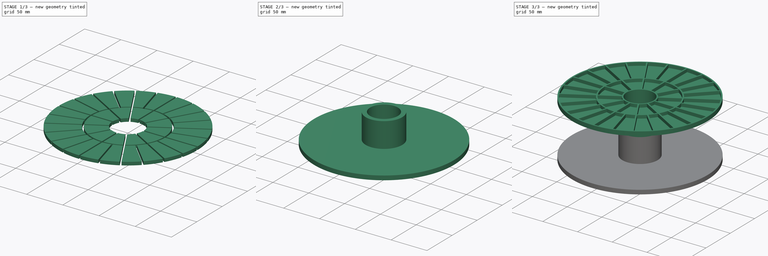
[diagram: build sequence overview — one tinted view per stage of 3, left to right]
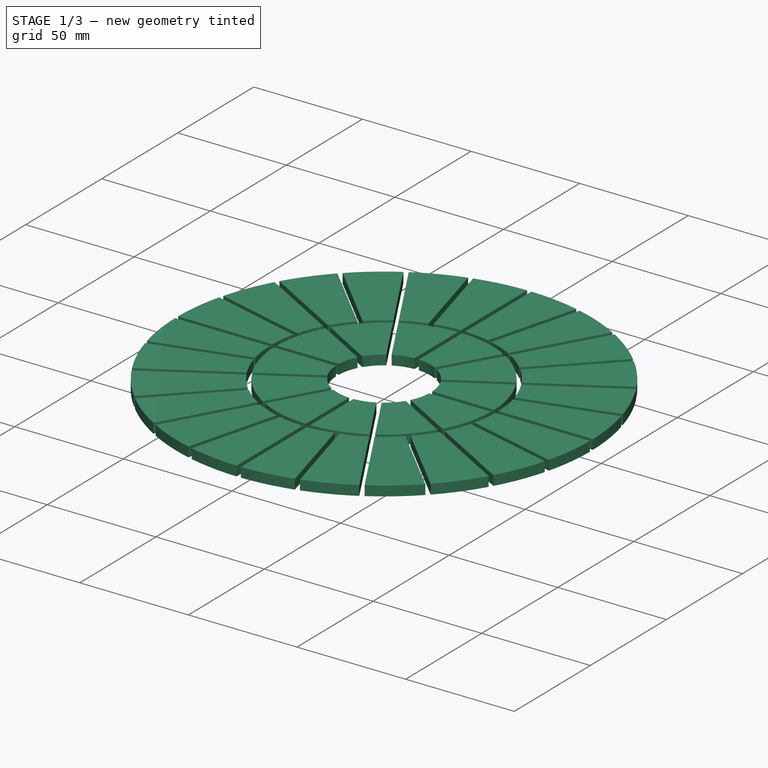
[diagram: stage 1 of 3 — iso view after this stage's code; geometry added in this stage tinted green]
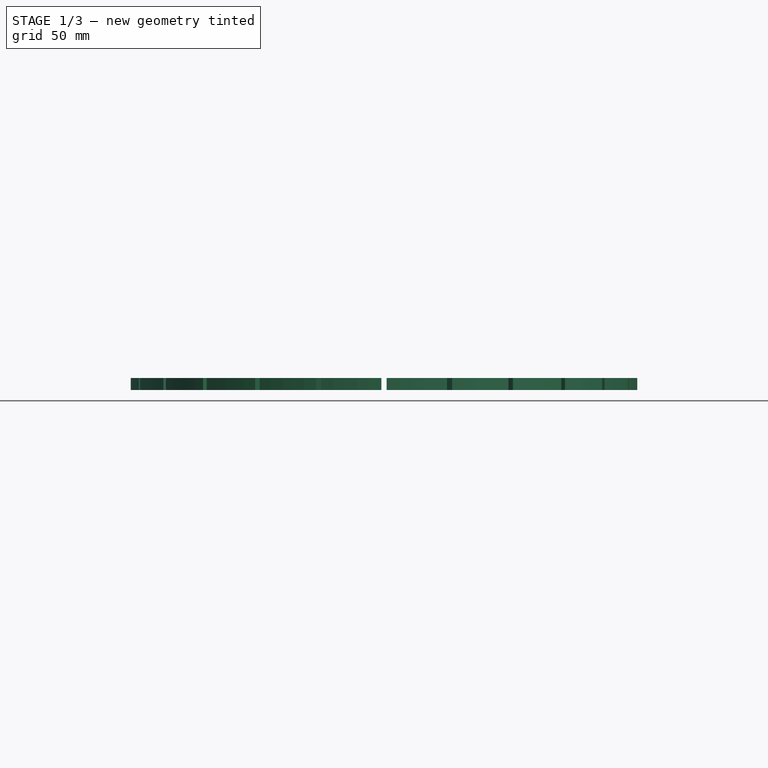
[diagram: stage 1 of 3 — front view after this stage's code; geometry added in this stage tinted green]
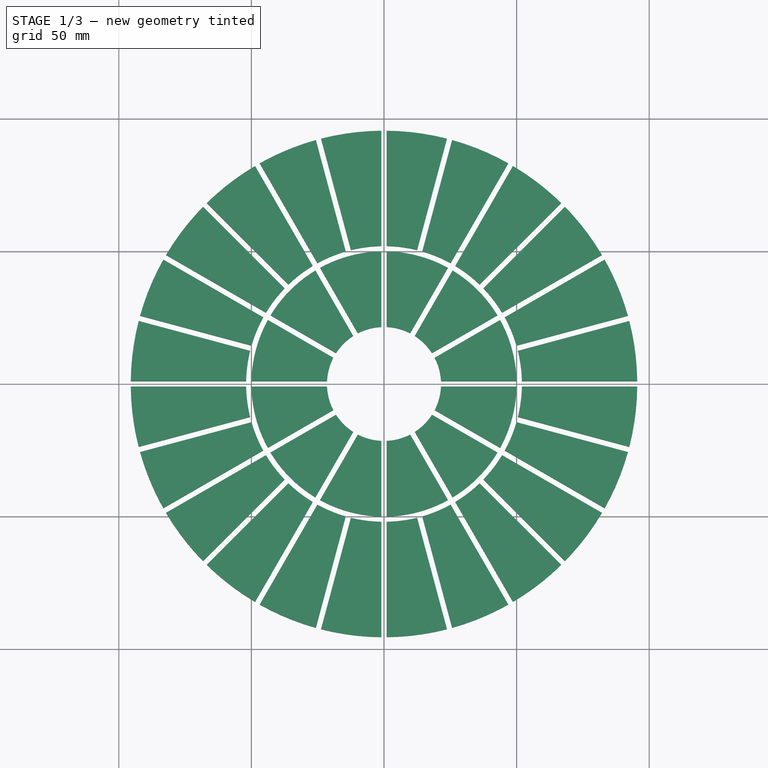
[diagram: stage 1 of 3 — top view after this stage's code; geometry added in this stage tinted green]
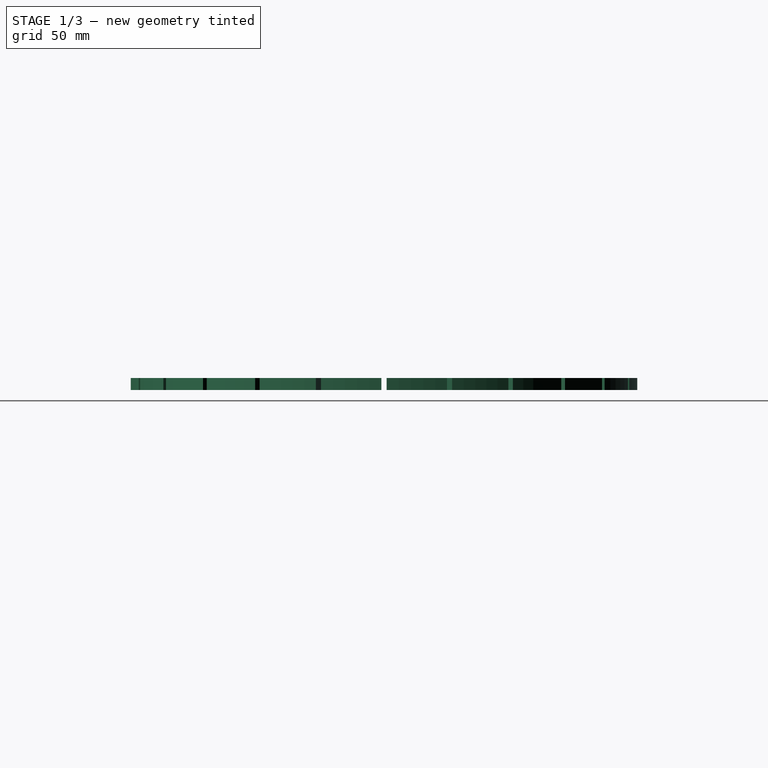
[diagram: stage 1 of 3 — right view after this stage's code; geometry added in this stage tinted green]
FCSTD DOCUMENT  (FreeCAD 0.14R3310 (Git))
Label: 44.SPOOL FORMFUTURA (ROLLO FILAMENTO)
License: CC-BY 3.0
LicenseURL: http://creativecommons.org/licenses/by/3.0/
objects: Sketcher::SketchObject×3, PartDesign::Pad×3, Part::FeaturePython×1, Part::Cut×1, Part::Mirroring×1, Part::MultiFuse×1
note: 13 computed .brp shape members not serialized (recipe doc carries the construction recipe); baked Part::Feature solids carry a one-line shape summary decoded from their .brp

FEATURE [Sketcher::SketchObject] Sketch002
  sketch-geometry (19):
    g0: ArcOfCircle [constr] CenterX=0 CenterY=0 CenterZ=0 NormalX=0 NormalY=0 NormalZ=1 Radius=21.5 StartAngle=0 EndAngle=1.5708
    g1: ArcOfCircle [constr] CenterX=0 CenterY=0 CenterZ=0 NormalX=0 NormalY=0 NormalZ=1 Radius=50 StartAngle=0 EndAngle=1.5708
    g2: ArcOfCircle [constr] CenterX=0 CenterY=0 CenterZ=0 NormalX=0 NormalY=0 NormalZ=1 Radius=52 StartAngle=0 EndAngle=1.5708
    g3: ArcOfCircle [constr] CenterX=0 CenterY=0 CenterZ=0 NormalX=0 NormalY=0 NormalZ=1 Radius=95.5 StartAngle=0 EndAngle=1.5708
    g4: LineSegment [constr] StartX=21.4767 StartY=1 StartZ=0 EndX=95.4948 EndY=1 EndZ=0
    g5: LineSegment [constr] StartX=0 StartY=0 StartZ=0 EndX=92.2459 EndY=24.7172 EndZ=0
    g6: LineSegment [constr] StartX=82.7054 StartY=47.75 StartZ=0 EndX=0 EndY=0 EndZ=0
    g7: LineSegment StartX=83.2009 StartY=46.8814 StartZ=0 EndX=45.525 EndY=25.1292 EndZ=0
    g8: LineSegment StartX=49.96 StartY=14.422 StartZ=0 EndX=91.982 EndY=25.6818 EndZ=0
    g9: LineSegment StartX=50.4777 StartY=12.4902 StartZ=0 EndX=92.4997 EndY=23.7499 EndZ=0
    g10: LineSegment StartX=95.4948 StartY=1 StartZ=0 EndX=51.9904 EndY=1 EndZ=0
    g11: LineSegment StartX=43.7926 StartY=24.129 StartZ=0 EndX=19.0994 EndY=9.87234 EndZ=0
    g12: LineSegment StartX=21.4767 StartY=1 StartZ=0 EndX=49.99 EndY=1 EndZ=0
    g13: ArcOfCircle CenterX=0 CenterY=0 CenterZ=0 NormalX=0 NormalY=0 NormalZ=1 Radius=21.5 StartAngle=0.0465284 EndAngle=0.47707
    g14: ArcOfCircle CenterX=0 CenterY=0 CenterZ=0 NormalX=0 NormalY=0 NormalZ=1 Radius=50 StartAngle=0.0200013 EndAngle=0.503597
    g15: ArcOfCircle CenterX=0 CenterY=0 CenterZ=0 NormalX=0 NormalY=0 NormalZ=1 Radius=52 StartAngle=0.019232 EndAngle=0.242567
    g16: ArcOfCircle CenterX=0 CenterY=0 CenterZ=0 NormalX=0 NormalY=0 NormalZ=1 Radius=95.5 StartAngle=0.0104714 EndAngle=0.251328
    g17: ArcOfCircle CenterX=0 CenterY=0 CenterZ=0 NormalX=0 NormalY=0 NormalZ=1 Radius=95.5 StartAngle=0.272271 EndAngle=0.513127
    g18: ArcOfCircle CenterX=0 CenterY=0 CenterZ=0 NormalX=0 NormalY=0 NormalZ=1 Radius=52 StartAngle=0.281031 EndAngle=0.504367
  constraints (66):
    c: Coincident(g0,g-1)
    c: PointOnObject(g0,g-1)
    c: PointOnObject(g0,g-2)
    c: Radius(g0) = 21.5
    c: Coincident(g1,g-1)
    c: PointOnObject(g1,g-1)
    c: PointOnObject(g1,g-2)
    c: Radius(g1) = 50
    c: Coincident(g2,g-1)
    c: PointOnObject(g2,g-1)
    c: PointOnObject(g2,g-2)
    c: Radius(g2) = 52
    c: Coincident(g3,g-1)
    c: PointOnObject(g3,g-1)
    c: PointOnObject(g3,g-2)
    c: Radius(g3) = 95.5
    c: PointOnObject(g4,g0)
    c: PointOnObject(g4,g3)
    c: Horizontal(g4)
    c: DistanceY(g-1,g4) = 1
    c: Coincident(g5,g-1)
    c: PointOnObject(g5,g3)
    c: Angle(g4,g5) = 0.261799
    c: PointOnObject(g6,g3)
    c: Coincident(g6,g-1)
    c: Angle(g5,g6) = 0.261799
    c: PointOnObject(g7,g3)
    c: PointOnObject(g7,g2)
    c: Parallel(g7,g6)
    c: Distance(g7,g6) = 1
    c: PointOnObject(g8,g2)
    c: PointOnObject(g8,g3)
    c: Parallel(g8,g5)
    c: Distance(g8,g5) = 1
    c: PointOnObject(g9,g2)
    c: PointOnObject(g9,g3)
    c: Parallel(g9,g5)
    c: Distance(g9,g5) = 1
    c: Coincident(g10,g4)
    c: PointOnObject(g10,g2)
    c: Horizontal(g10)
    c: PointOnObject(g11,g1)
    c: PointOnObject(g11,g0)
    c: Parallel(g11,g6)
    c: Distance(g11,g6) = 1
    c: Coincident(g12,g4)
    c: PointOnObject(g12,g1)
    c: Horizontal(g12)
    c: Coincident(g13,g-1)
    c: Coincident(g13,g4)
    c: Coincident(g13,g11)
    c: Coincident(g14,g-1)
    c: Coincident(g14,g12)
    c: Coincident(g14,g11)
    c: Coincident(g15,g-1)
    c: Coincident(g15,g10)
    c: Coincident(g15,g9)
    c: Coincident(g16,g-1)
    c: Coincident(g16,g4)
    c: Coincident(g16,g9)
    c: Coincident(g17,g-1)
    c: Coincident(g17,g8)
    c: Coincident(g17,g7)
    c: Coincident(g18,g-1)
    c: Coincident(g18,g8)
    c: Coincident(g18,g7)
FEATURE [PartDesign::Pad] Pad002
  Length = 4.5
  Length2 = 100
  Sketch = -> Sketch002
  Type = 0
FEATURE [Part::FeaturePython] Array  # Draft array (typed FeaturePython)
  Angle = 330
  ArrayType = 1
  Axis = (0,0,1)
  Base = -> Pad002
  Center = (0,0,0)
  IntervalX = (1,0,0)
  IntervalY = (0,1,0)
  IntervalZ = (0,0,1)
  NumberPolar = 12
  NumberX = 1
  NumberY = 2
  NumberZ = 1
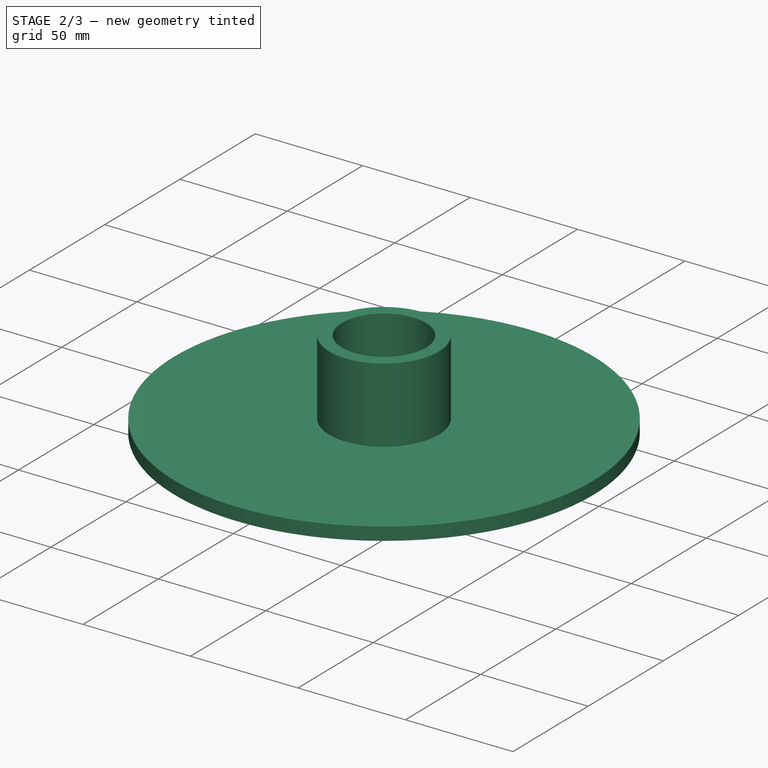
[diagram: stage 2 of 3 — iso view after this stage's code; geometry added in this stage tinted green]
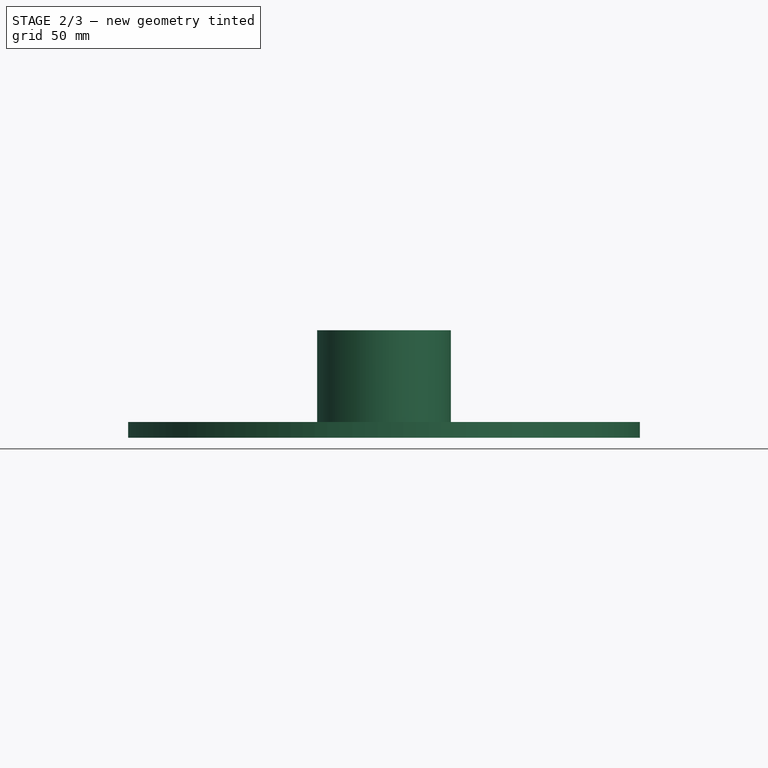
[diagram: stage 2 of 3 — front view after this stage's code; geometry added in this stage tinted green]
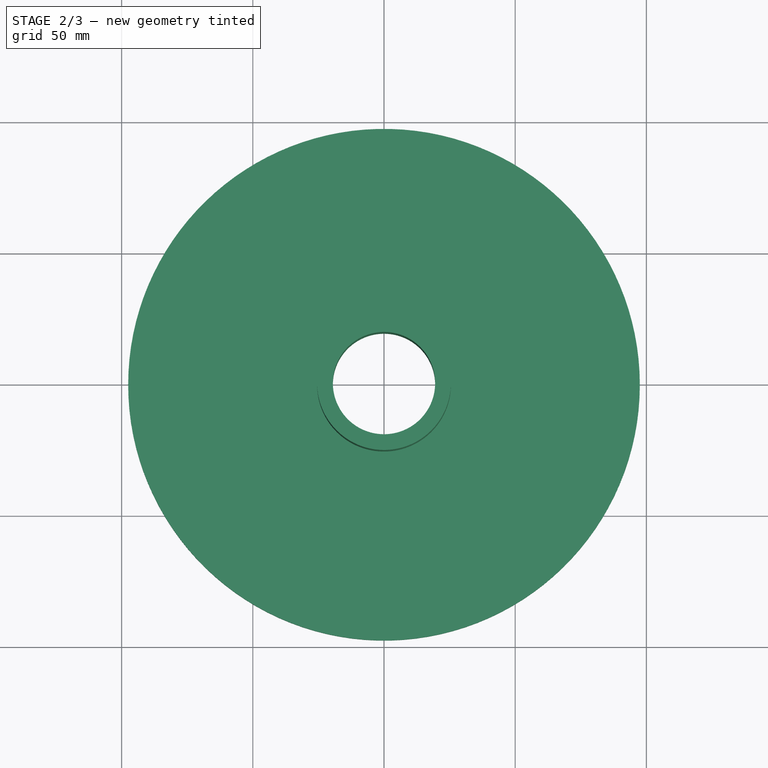
[diagram: stage 2 of 3 — top view after this stage's code; geometry added in this stage tinted green]
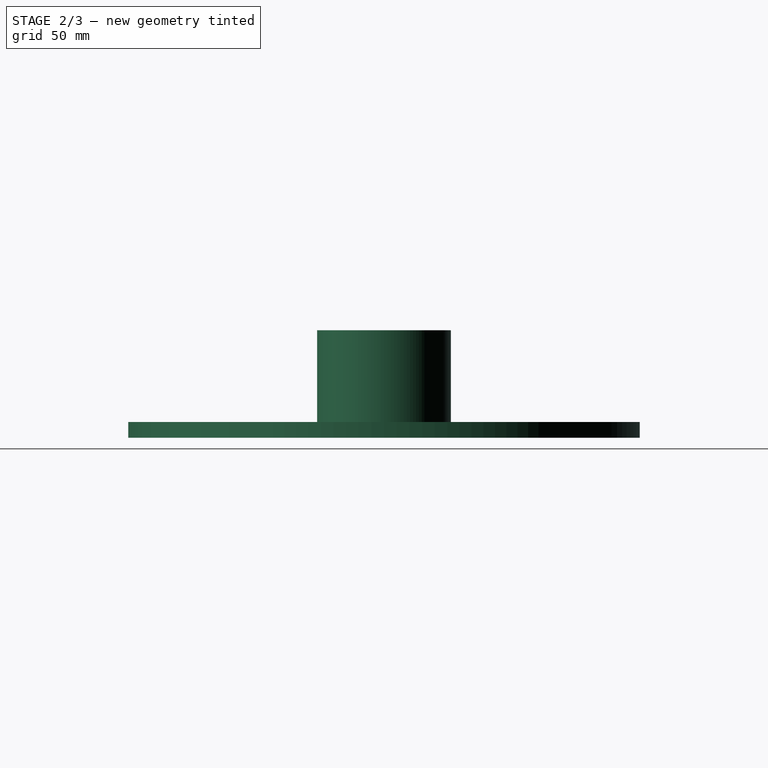
[diagram: stage 2 of 3 — right view after this stage's code; geometry added in this stage tinted green]
FEATURE [Sketcher::SketchObject] Sketch
  sketch-geometry (2):
    g0: Circle CenterX=0 CenterY=0 CenterZ=0 NormalX=0 NormalY=0 NormalZ=1 Radius=19.5
    g1: Circle CenterX=0 CenterY=0 CenterZ=0 NormalX=0 NormalY=0 NormalZ=1 Radius=97.5
  constraints (4):
    c: Coincident(g0,g-1)
    c: Coincident(g1,g-1)
    c: Radius(g0) = 19.5
    c: Radius(g1) = 97.5
FEATURE [PartDesign::Pad] Pad
  Length = 6
  Length2 = 100
  Sketch = -> Sketch
  Type = 0
FEATURE [Sketcher::SketchObject] Sketch001
  Placement = pos=(0,0,6) rot=(0,0,1;0rad)
  Support = -> Pad [Face4]
  sketch-geometry (2):
    g0: Circle CenterX=0 CenterY=0 CenterZ=0 NormalX=0 NormalY=0 NormalZ=1 Radius=19.5
    g1: Circle CenterX=0 CenterY=0 CenterZ=0 NormalX=0 NormalY=0 NormalZ=1 Radius=25.5
  constraints (4):
    c: Coincident(g0,g-1)
    c: Coincident(g1,g-1)
    c: Radius(g0) = 19.5
    c: Radius(g1) = 25.5
FEATURE [PartDesign::Pad] Pad001
  Length = 35
  Length2 = 100
  Sketch = -> Sketch001
  Type = 0
FEATURE [Part::Cut] Cut
  Base = -> Pad001
  Tool = -> Array
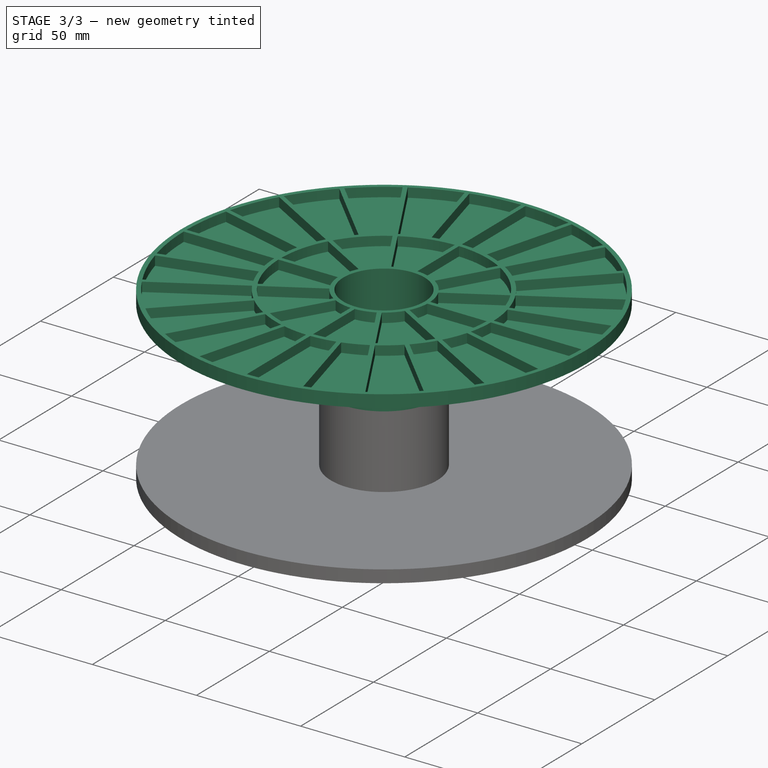
[diagram: stage 3 of 3 — iso view after this stage's code; geometry added in this stage tinted green]
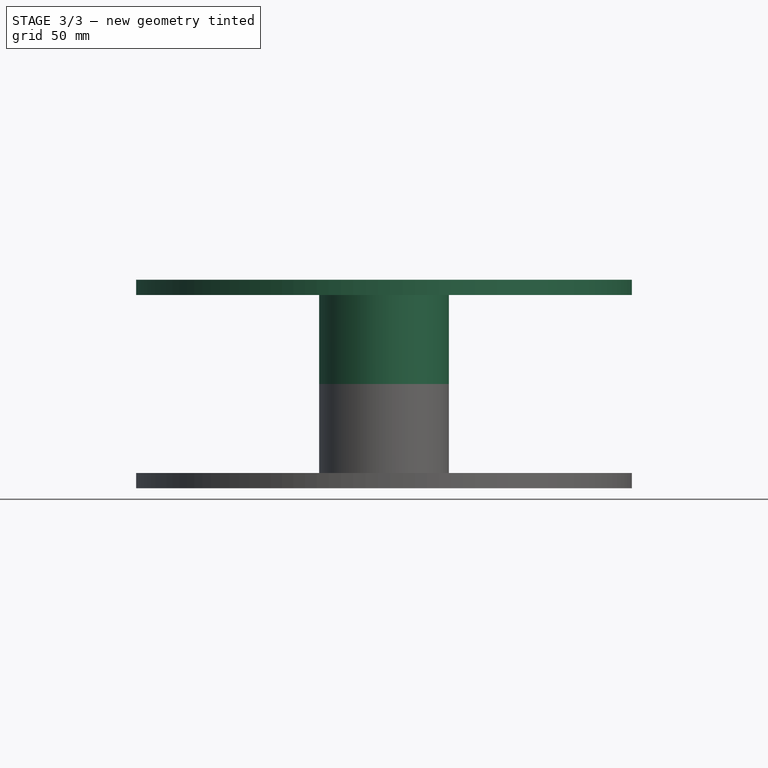
[diagram: stage 3 of 3 — front view after this stage's code; geometry added in this stage tinted green]
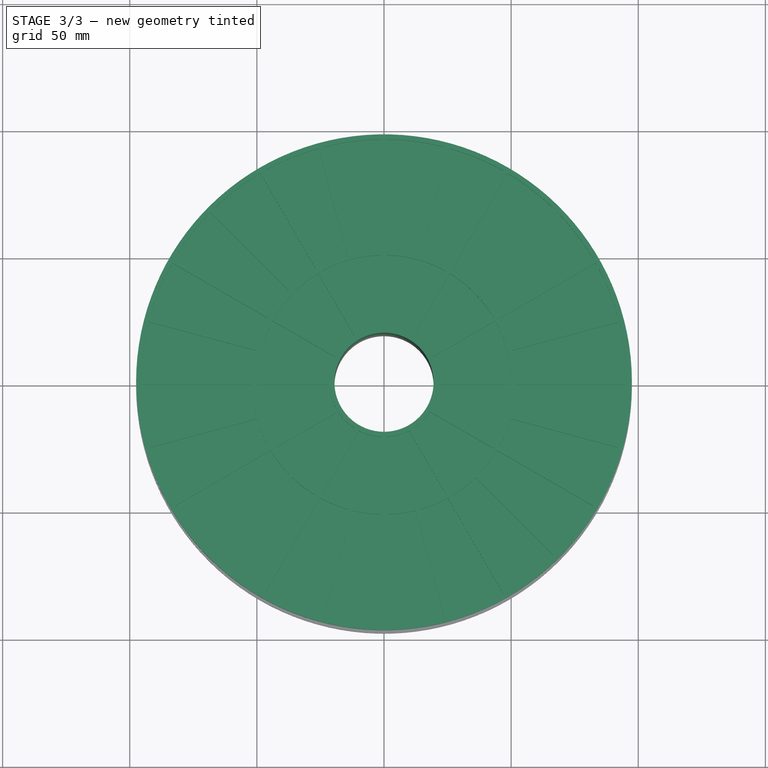
[diagram: stage 3 of 3 — top view after this stage's code; geometry added in this stage tinted green]
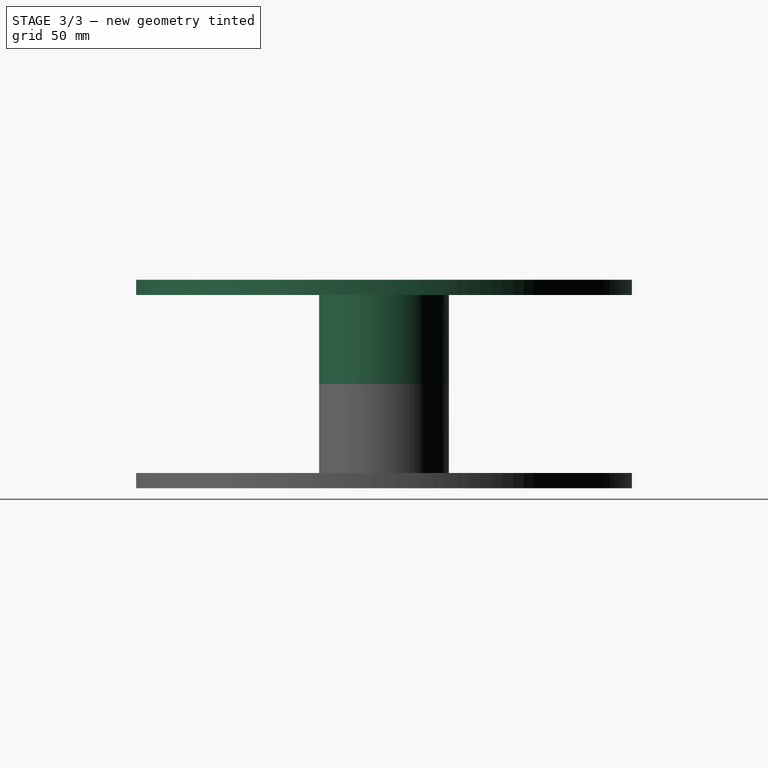
[diagram: stage 3 of 3 — right view after this stage's code; geometry added in this stage tinted green]
FEATURE [Part::Mirroring] Part__Mirroring  label="Cut (Mirror #1)"
  Base = (0,0,41)
  Normal = (0,0,1)
  Source = -> Cut
FEATURE [Part::MultiFuse] Fusion
  Shapes = -> [Cut,Part__Mirroring]
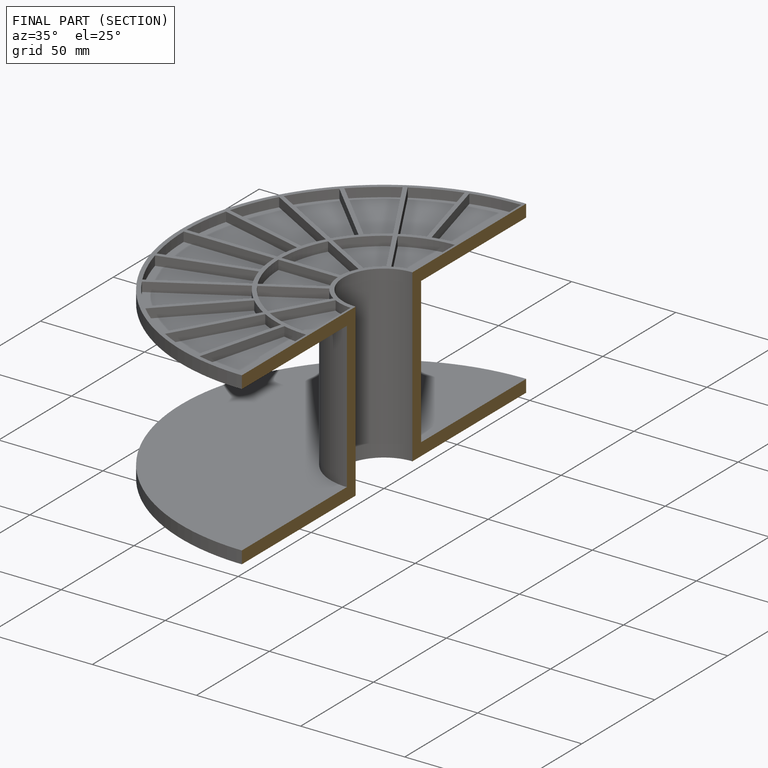
[diagram: finished part — half-section view (interior)]
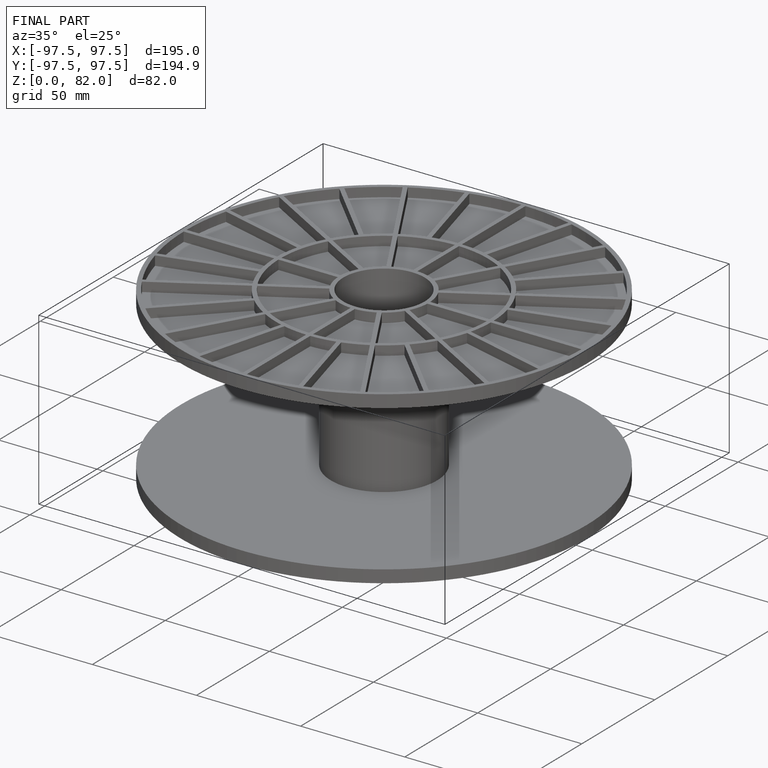
[diagram: finished part — iso view with bounding-box wireframe]
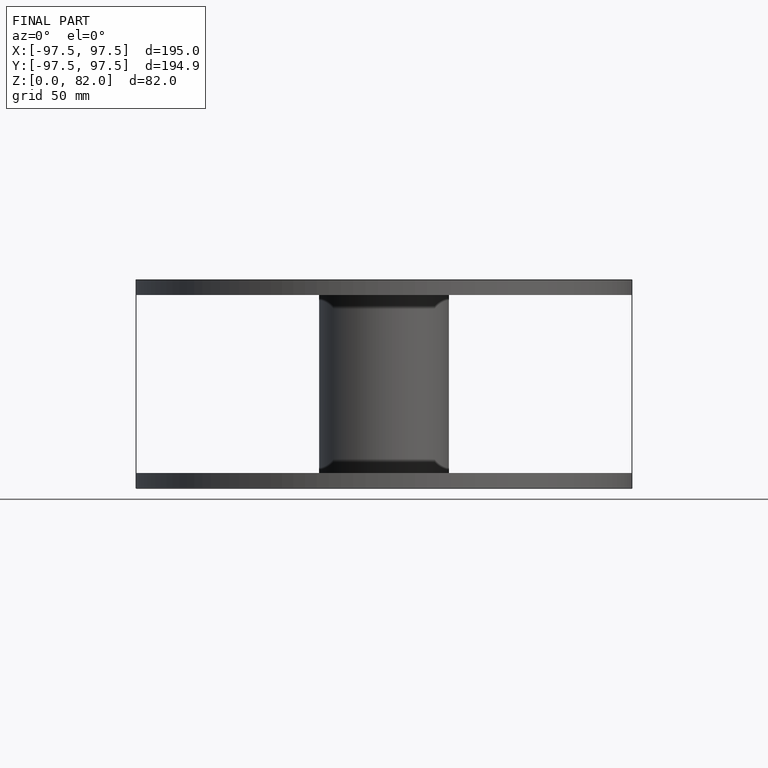
[diagram: finished part — front view with bounding-box wireframe]
